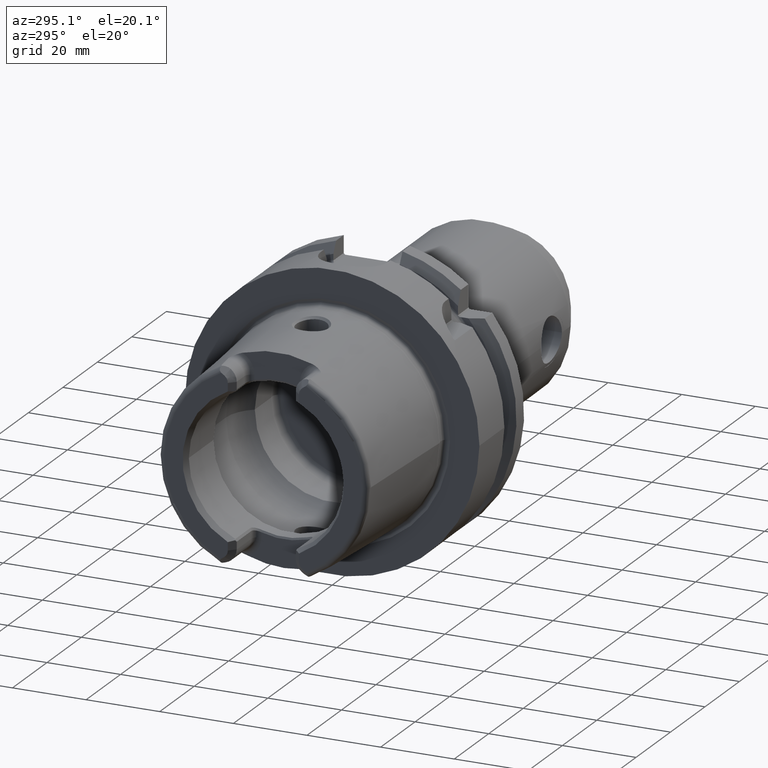
[diagram: clean part render]
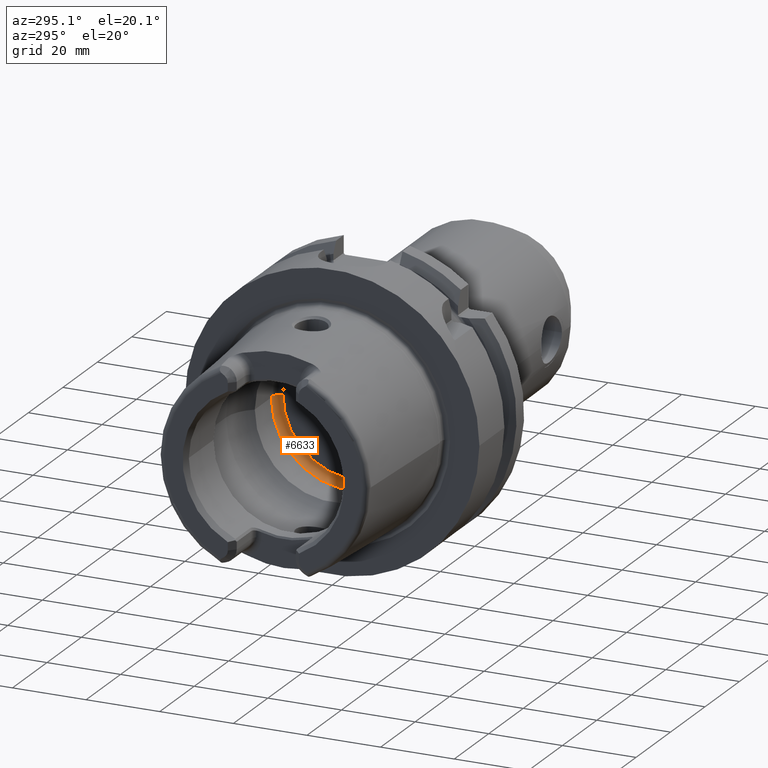
[diagram: same view with one face highlighted and labeled with its STEP entity id]
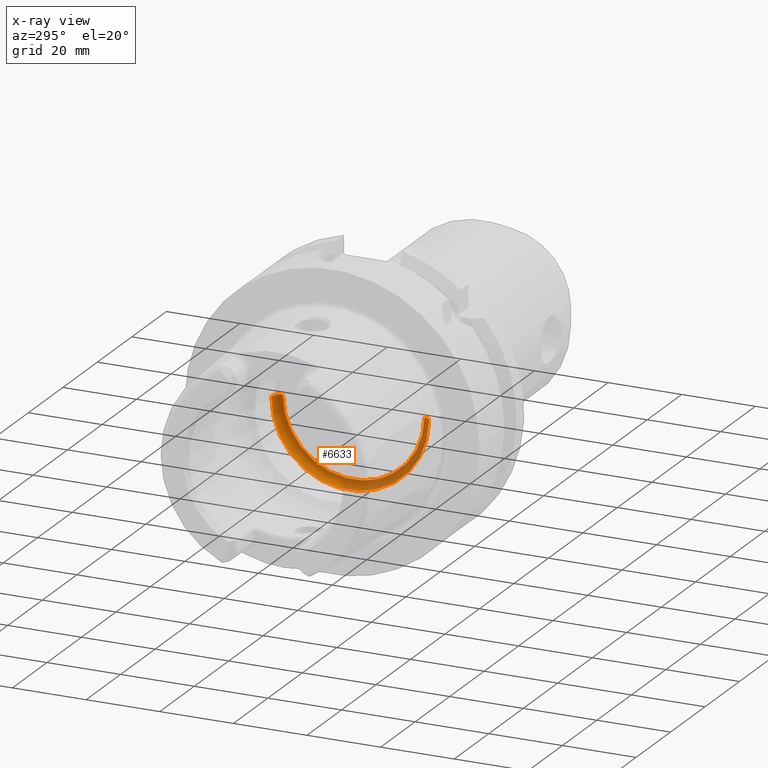
[diagram: x-ray of the same camera — body ghosted, the highlighted face saturated]
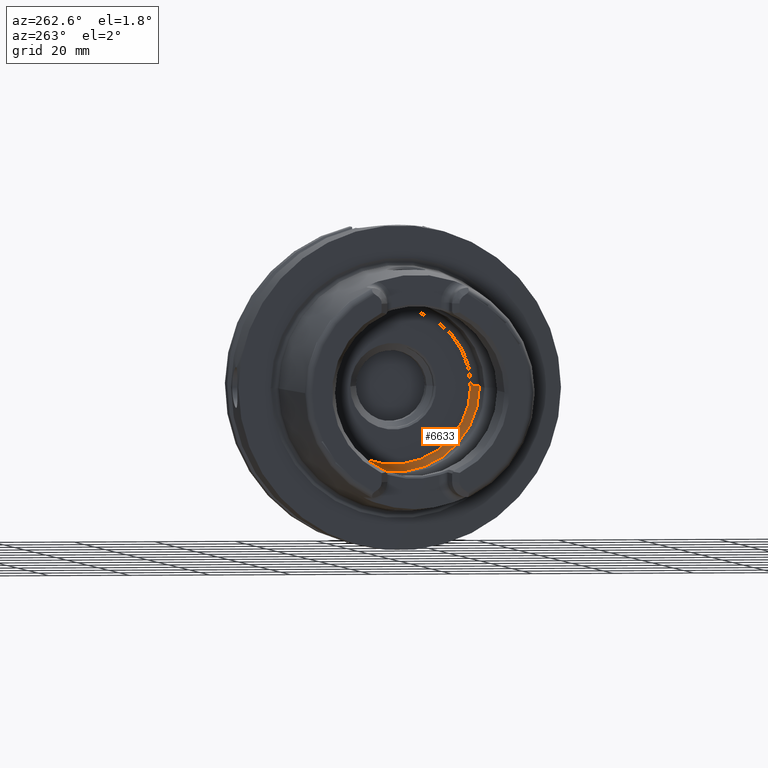
[diagram: same view with one face highlighted and labeled with its STEP entity id]
A machine part, auxiliary view. The second image highlights one B-rep face of the part: STEP entity #6633.
The next image is the same camera in x-ray: the body ghosted, the highlighted face saturated — about 41% of this face is hidden behind the body in this view.
A second angle (auxiliary view) of the same face is appended — the face is thin or edge-on in the first view.
In plain terms, the highlighted toroidal blend (fillet) surface has major radius 19.225 mm and minor (blend) radius 2 mm.
Its self-contained STEP definition (entity closure, byte-faithful):
#2709=CARTESIAN_POINT('',(9.578220211292E0,0.E0,0.E0));
#2710=DIRECTION('',(-1.E0,0.E0,0.E0));
#2711=DIRECTION('',(0.E0,1.E0,0.E0));
#2712=AXIS2_PLACEMENT_3D('',#2709,#2710,#2711);
#2728=CARTESIAN_POINT('',(1.045E1,1.9225E1,0.E0));
#2729=DIRECTION('',(0.E0,0.E0,1.E0));
#2730=DIRECTION('',(1.E0,0.E0,0.E0));
#2731=AXIS2_PLACEMENT_3D('',#2728,#2729,#2730);
#2733=CARTESIAN_POINT('',(1.245E1,0.E0,0.E0));
#2734=DIRECTION('',(-1.E0,0.E0,0.E0));
#2735=DIRECTION('',(0.E0,1.E0,0.E0));
#2736=AXIS2_PLACEMENT_3D('',#2733,#2734,#2735);
#2738=CARTESIAN_POINT('',(1.045E1,-1.9225E1,0.E0));
#2739=DIRECTION('',(0.E0,0.E0,-1.E0));
#2740=DIRECTION('',(1.E0,0.E0,0.E0));
#2741=AXIS2_PLACEMENT_3D('',#2738,#2739,#2740);
#2967=CARTESIAN_POINT('',(1.245E1,1.9225E1,0.E0));
#2968=CARTESIAN_POINT('',(9.578220211292E0,2.1025E1,0.E0));
#2969=VERTEX_POINT('',#2967);
#2970=VERTEX_POINT('',#2968);
#2971=CARTESIAN_POINT('',(1.245E1,-1.9225E1,0.E0));
#2972=CARTESIAN_POINT('',(9.578220211292E0,-2.1025E1,0.E0));
#2973=VERTEX_POINT('',#2971);
#2974=VERTEX_POINT('',#2972);
#6621=CARTESIAN_POINT('',(1.045E1,0.E0,0.E0));
#6622=DIRECTION('',(1.E0,0.E0,0.E0));
#6623=DIRECTION('',(0.E0,-1.E0,0.E0));
#6624=AXIS2_PLACEMENT_3D('',#6621,#6622,#6623);
#6625=TOROIDAL_SURFACE('',#6624,1.9225E1,2.E0);
#6626=ORIENTED_EDGE('',*,*,#6611,.F.);
#6628=ORIENTED_EDGE('',*,*,#6627,.T.);
#6629=ORIENTED_EDGE('',*,*,#6614,.T.);
#6630=ORIENTED_EDGE('',*,*,#6585,.F.);
#6631=EDGE_LOOP('',(#6626,#6628,#6629,#6630));
#6632=FACE_OUTER_BOUND('',#6631,.F.);
#6633=ADVANCED_FACE('',(#6632),#6625,.F.);
#2713=CIRCLE('',#2712,2.1025E1);
#2732=CIRCLE('',#2731,2.E0);
#2737=CIRCLE('',#2736,1.9225E1);
#2742=CIRCLE('',#2741,2.E0);
#6585=EDGE_CURVE('',#2970,#2974,#2713,.T.);
#6611=EDGE_CURVE('',#2969,#2970,#2732,.T.);
#6614=EDGE_CURVE('',#2973,#2974,#2742,.T.);
#6627=EDGE_CURVE('',#2969,#2973,#2737,.T.);